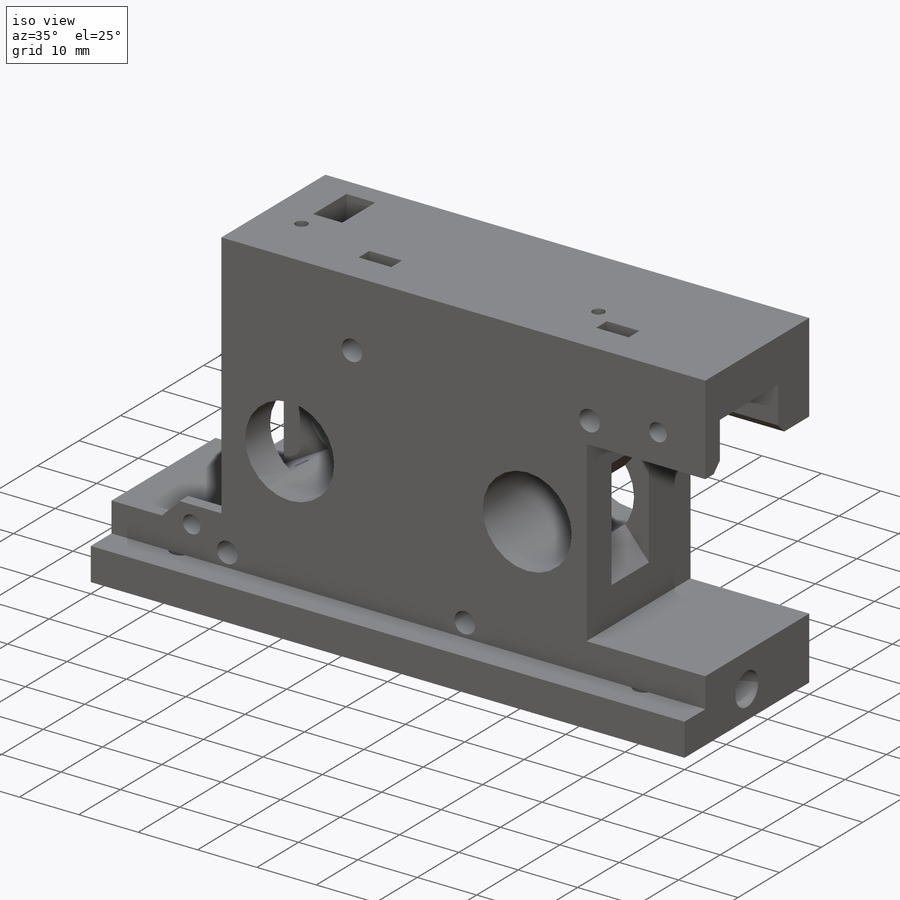
[diagram: iso view]
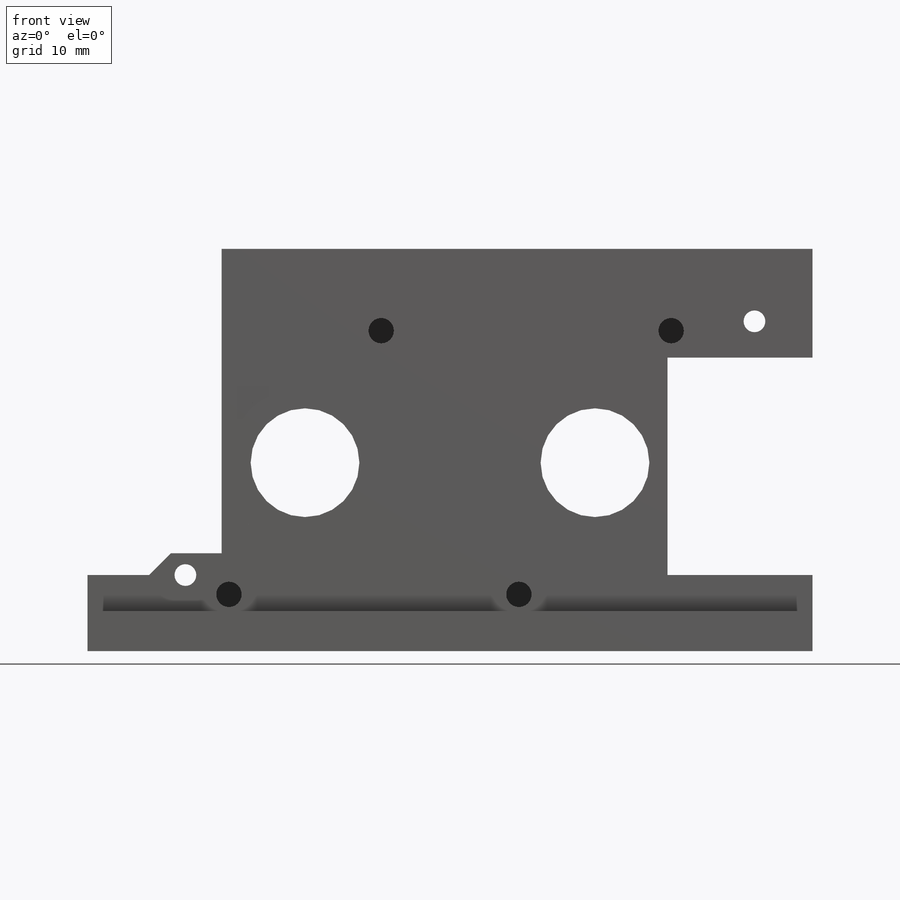
[diagram: front view]
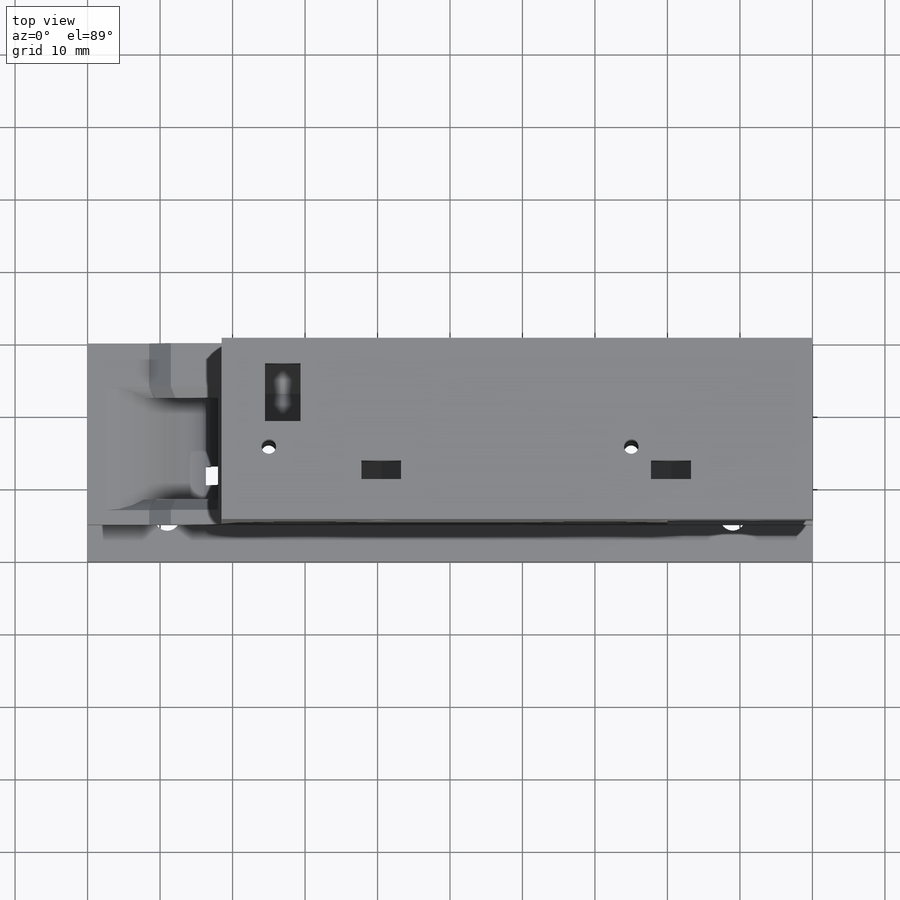
[diagram: top view]
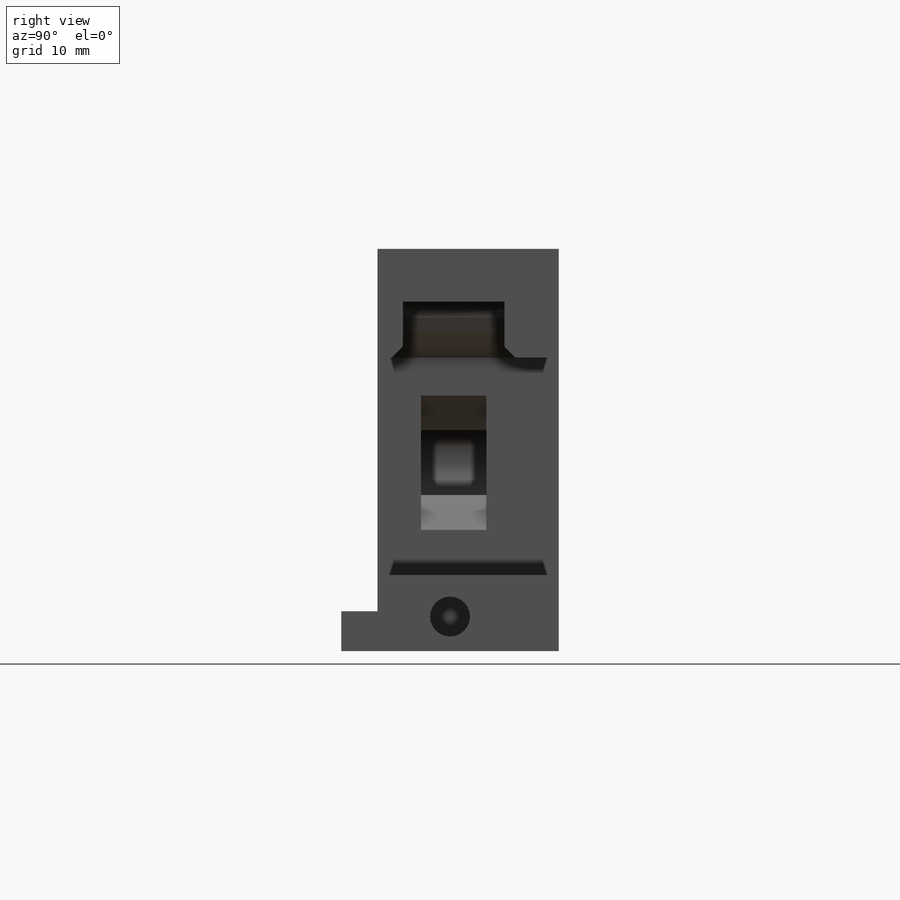
[diagram: right view]
SOLIDWORKS PART (.sldprt)
format: sldprt  version: not decoded by parser v0  size: 806,912 bytes
history: native  units: mm
features: sketch x21, cut_extrude x18, extrude x2, chamfer x2, material x1, fillet x1 (+11 scaffold rows collapsed)
feature tree (56):
  scaffold x11  (default folders/planes/origin — collapsed)
  material  "ABS PC"
  sketch  "Sketch2"  dims[c1.D1=~41.605073mm c1.D2=~117.980955mm c2.D1=30.0mm c2.D2=100.0mm]
  extrude  "Boss-Extrude1"  Depth=5.5mm
  sketch  "Sketch3"  dims[c1.D1=~5.776537mm c1.D5=3.5mm c1.D7=3.5mm c1.D8=3.5mm c1.D9=3.5mm c2.D1=16.5mm c2.D4=12.1mm c2.D10=16.5mm c3.D1=12.1mm c3.D2=25.0mm c3.D3=50.0mm c3.D4=15.0mm c3.D6=6.0mm c3.D7=11.0mm c3.D8=6.0mm c3.D9=11.0mm c4.D4=15.25mm c4.D10=15.25mm]
  cut_extrude  "Cut-Extrude1"  [1 undecoded]
  sketch  "Sketch4"  dims[c1.D5=2.0mm c1.D8=2.0mm c1.D9=2.0mm c1.D1=~27.431396mm c1.D2=~29.880918mm c2.D1=30.0mm c2.D2=~32.474037mm c3.D1=35.0mm c3.D2=2.0mm c3.D3=35.0mm c3.D4=2.5mm c3.D6=5.0mm c3.D7=15.0mm c3.D8=25.0mm c3.D9=50.0mm]
  extrude  "Boss-Extrude2"  Depth=50mm
  sketch  "Sketch6"  dims[c1.D1=15.0mm c1.D2=15.0mm c1.D3=~4.306036mm c2.D2=15.0mm c2.D4=15.0mm c2.D5=~4.119992mm c2.D6=~3.592879mm c2.D7=~4.119992mm c2.D8=3.5mm c2.D9=3.5mm c2.D10=3.5mm c3.D4=15.0mm c3.D3=20.5mm c3.D2=17.5mm c4.D4=20.0mm c4.D5=42.0mm c4.D6=42.0mm c4.D7=2.0mm c4.D9=21.0mm c4.D10=21.0mm c4.D11=12.5mm c5.D9=21.0mm c5.D2=30.0mm c5.D4=30.0mm]
  cut_extrude  "Cut-Extrude2"  [1 undecoded]
  sketch  "Sketch7"  dims[c1.D2=15.0mm c1.D1=42.0mm c2.D2=0.0mm c2.D3=21.0mm c2.D4=0.0mm c2.D5=21.0mm c2.D6=42.0mm c3.D6=60.0deg]
  sketch  "Sketch8"  dims[D1=3.5mm]
  cut_extrude  "Cut-Extrude3"  Depth=13mm
  sketch  "Sketch17"  dims[D1=5.5mm]
  cut_extrude  "Cut-Extrude13"  Depth=2.6mm
  sketch  "Sketch20"  dims[c1.D1=~3.932179mm c1.D2=~7.257496mm c2.D1=~9.115334mm c2.D2=~3.582304mm]
  cut_extrude  "Cut-Extrude15"  Depth=11mm
  sketch  "Sketch23"  dims[c1.D1=~4.042291mm c1.D2=~8.000112mm c2.D1=~5.198501mm c2.D2=~9.256102mm c3.D1=~1.346127mm]
  cut_extrude  "Cut-Extrude17"  Depth=7.9mm
  sketch  "Sketch9"  dims[c1.D5=3.0mm c1.D6=3.0mm c1.D7=3.0mm c1.D8=3.0mm c1.D1=~23.655237mm c2.D1=90.0deg c3.D1=9.0mm c3.D2=10.0mm c3.D3=27.5mm c4.D3=120.0deg c4.D1=20.0mm c5.D3=16.0mm c5.D1=9.0mm c5.D2=~17.087082mm c6.D1=7.5mm c6.D2=5.0mm c6.D3=40.0mm c6.D4=5.0mm c7.D2=45.0mm c7.D3=4.0mm c7.D4=10.0mm c7.D6=5.0mm c7.D7=4.0mm c8.D3=8.5mm c8.D4=3.0mm c8.D7=3.0mm c8.D8=5.0mm]
  cut_extrude  "Cut-Extrude4"  [1 undecoded]
  sketch  "Sketch11"  dims[c1.D1=5.5mm c1.D2=5.5mm c1.D3=5.5mm c2.D2=8.75mm c2.D3=7.5mm]
  cut_extrude  "Cut-Extrude6"  Depth=25mm
  sketch  "Sketch13"  dims[c1.D1=~4.211708mm c1.D2=~3.160631mm c2.D1=4.0mm c2.D2=3.0mm c2.D3=2.0mm c2.D4=4.5mm]
  cut_extrude  "Cut-Extrude7"  Depth=14mm
  sketch  "Sketch14"  dims[D1=8.0mm]
  cut_extrude  "Cut-Extrude8"  Depth=4.9mm
  sketch  "Sketch16"  dims[D1=~10.360411mm D2=~6.334608mm]
  cut_extrude  "Cut-Extrude12"  Depth=9mm
  fillet  "Fillet1"  Radius=10mm
  sketch  "Sketch24"  dims[D1=4.5mm D2=15.0mm D3=4.0mm D4=2.5mm]
  cut_extrude  "Cut-Extrude18"  [1 undecoded]
  sketch  "Sketch10"  dims[c1.D1=9.0mm c2.D1=120.0deg c2.D2=~7.609405mm c3.D2=120.0deg c4.D2=7.0mm c5.D2=120.0deg c6.D2=7.0mm c7.D2=140.0deg]
  cut_extrude  "Cut-Extrude5"  Depth=9mm
  sketch  "Sketch25"  dims[D1=3.0mm D2=8.0mm D3=5.0mm]
  cut_extrude  "Cut-Extrude19"  [1 undecoded]
  sketch  "Sketch26"  dims[D1=3.0mm D2=4.0mm D3=4.0mm]
  cut_extrude  "Cut-Extrude20"  Depth=14mm
  chamfer  "Chamfer2"  Distance=10mm Angle=27deg
  chamfer  "Chamfer1"  Distance=1.5mm Angle=45deg
  sketch  "Sketch28"  dims[D1=5.5mm D2=5.75mm]
  cut_extrude  "Cut-Extrude21"  Depth=13mm
  sketch  "Sketch29"  dims[D1=8.0mm]
  cut_extrude  "Cut-Extrude22"  Depth=5mm
  sketch  "Sketch31"  dims[c1.D1=~11.892086mm c1.D2=~6.201743mm c2.D1=5.0mm]
  cut_extrude  "Cut-Extrude24"  [1 undecoded]
decode coverage: 38 of 44 modeling features carry decoded parameters
note: ~ marks probable driven/reference dimensions
note: 6 parameter values undecoded
summary: no parameter record found for 6 features
note: suppression state not decoded; provenance and decode notes live in map.json
